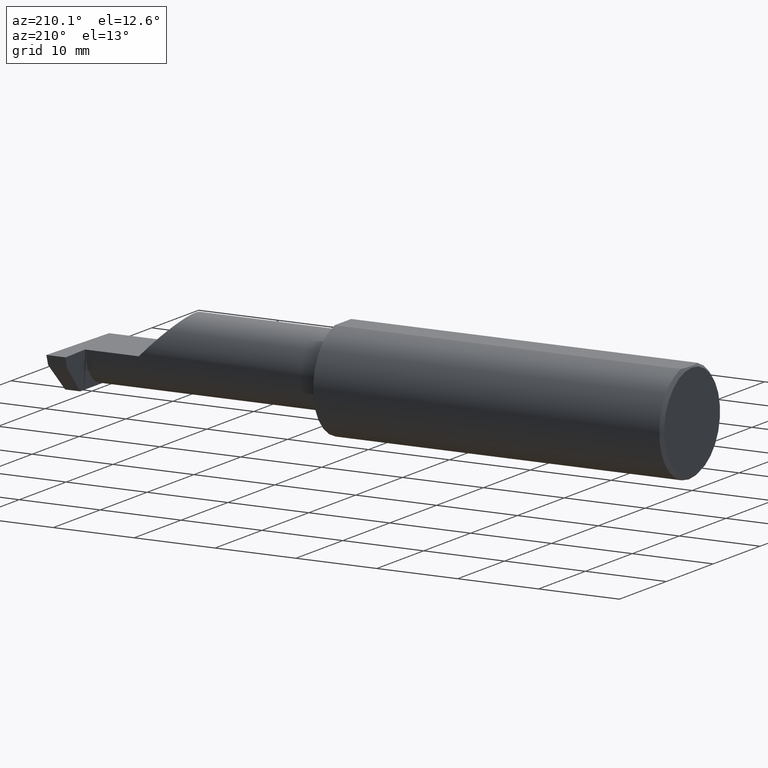
[diagram: clean part render]
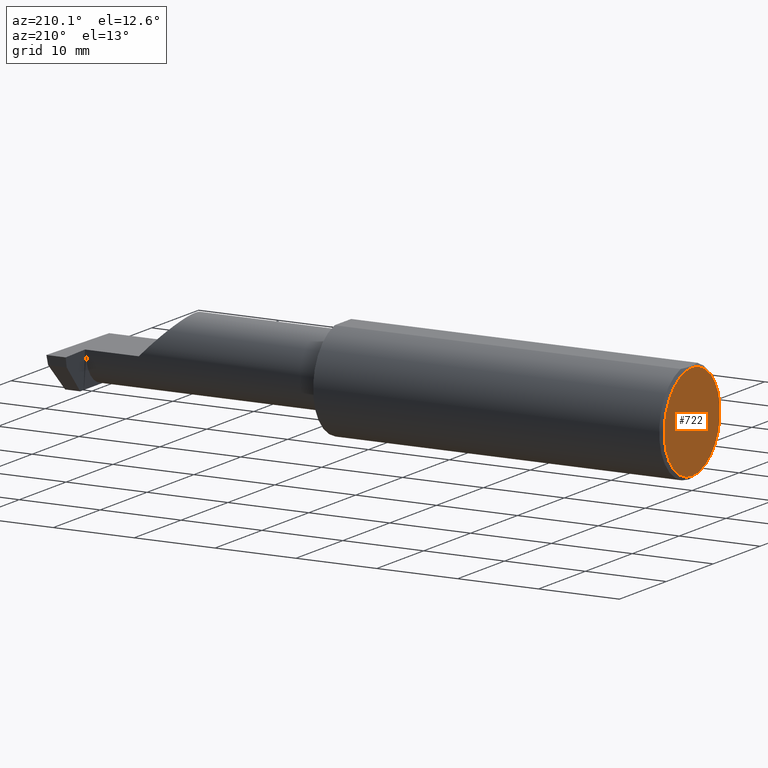
[diagram: same view with one face highlighted and labeled with its STEP entity id]
A machine part, auxiliary view. The second image highlights one B-rep face of the part: STEP entity #722.
In plain terms, the highlighted planar face has unit normal (1, 0, 0).
Its self-contained STEP definition (entity closure, byte-faithful):
#17 = AXIS2_PLACEMENT_3D ( 'NONE', #36, #471, #792 ) ;
#36 = CARTESIAN_POINT ( 'NONE',  ( 0.000000000000000000, 0.000000000000000000, 0.000000000000000000 ) ) ;
#60 = CIRCLE ( 'NONE', #798, 0.2348499999999999754 ) ;
#86 = EDGE_LOOP ( 'NONE', ( #721, #632 ) ) ;
#190 = DIRECTION ( 'NONE',  ( 0.000000000000000000, 0.000000000000000000, 1.000000000000000000 ) ) ;
#212 = PLANE ( 'NONE',  #300 ) ;
#300 = AXIS2_PLACEMENT_3D ( 'NONE', #461, #674, #780 ) ;
#373 = EDGE_CURVE ( 'NONE', #439, #615, #414, .T. ) ;
#381 = CARTESIAN_POINT ( 'NONE',  ( 0.000000000000000000, 0.000000000000000000, 0.000000000000000000 ) ) ;
#407 = CARTESIAN_POINT ( 'NONE',  ( 0.000000000000000000, 2.967931517733610643E-17, 0.2348499999999999754 ) ) ;
#414 = CIRCLE ( 'NONE', #17, 0.2348499999999999754 ) ;
#439 = VERTEX_POINT ( 'NONE', #407 ) ;
#461 = CARTESIAN_POINT ( 'NONE',  ( 0.000000000000000000, 0.000000000000000000, 0.000000000000000000 ) ) ;
#471 = DIRECTION ( 'NONE',  ( -1.000000000000000000, -0.000000000000000000, -0.000000000000000000 ) ) ;
#484 = EDGE_CURVE ( 'NONE', #615, #439, #60, .T. ) ;
#522 = FACE_OUTER_BOUND ( 'NONE', #86, .T. ) ;
#615 = VERTEX_POINT ( 'NONE', #700 ) ;
#632 = ORIENTED_EDGE ( 'NONE', *, *, #373, .T. ) ;
#674 = DIRECTION ( 'NONE',  ( 1.000000000000000000, 0.000000000000000000, 0.000000000000000000 ) ) ;
#678 = DIRECTION ( 'NONE',  ( -1.000000000000000000, -0.000000000000000000, -0.000000000000000000 ) ) ;
#700 = CARTESIAN_POINT ( 'NONE',  ( 0.000000000000000000, 0.000000000000000000, -0.2348499999999999754 ) ) ;
#721 = ORIENTED_EDGE ( 'NONE', *, *, #484, .T. ) ;
#722 = ADVANCED_FACE ( 'NONE', ( #522 ), #212, .F. ) ;
#780 = DIRECTION ( 'NONE',  ( 0.000000000000000000, 0.000000000000000000, -1.000000000000000000 ) ) ;
#792 = DIRECTION ( 'NONE',  ( 0.000000000000000000, 0.000000000000000000, 1.000000000000000000 ) ) ;
#798 = AXIS2_PLACEMENT_3D ( 'NONE', #381, #678, #190 ) ;